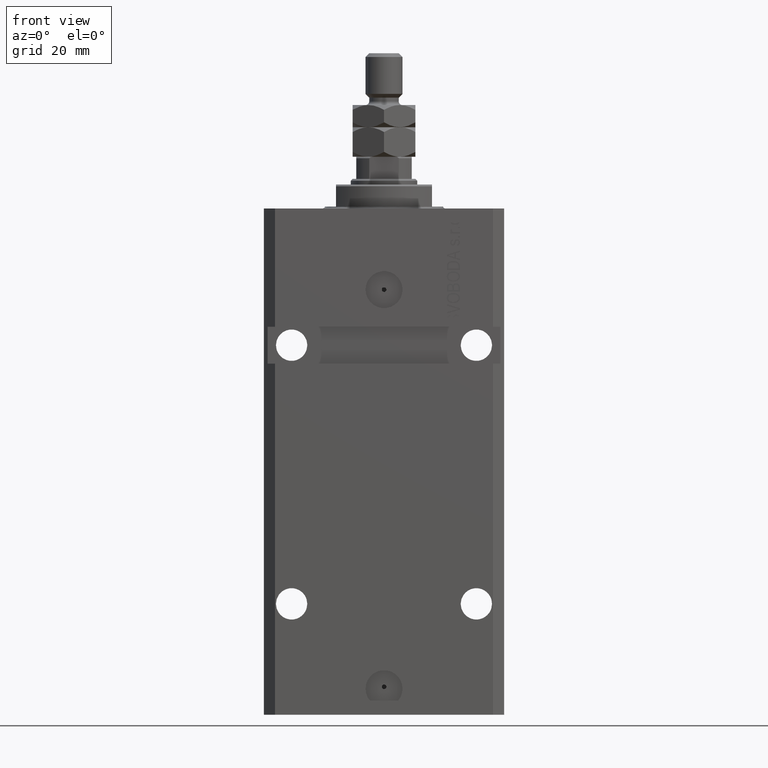
[diagram: clean part render]
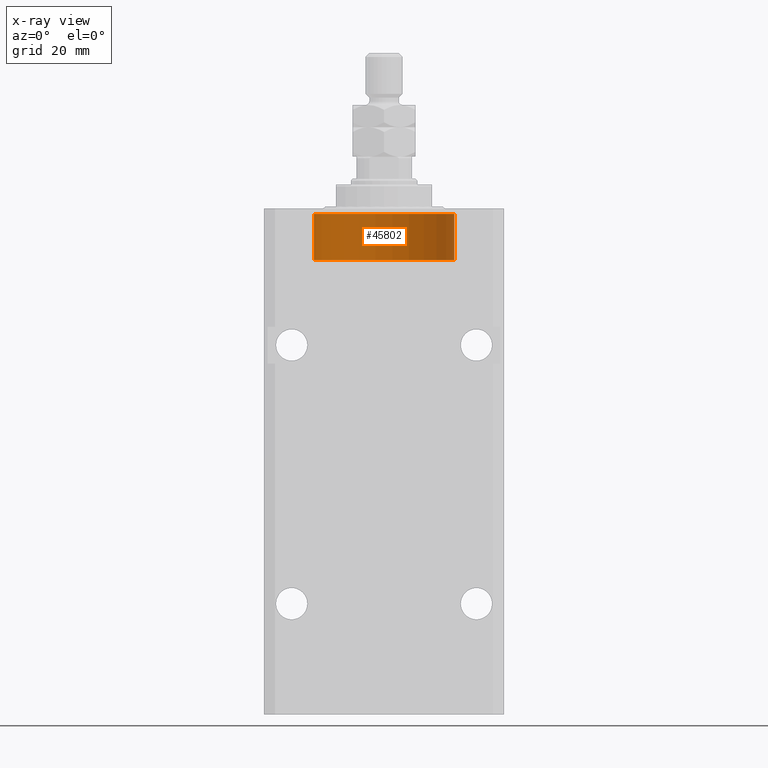
[diagram: x-ray — body ghosted, one internal face saturated and labeled with its STEP entity id]
A machine part, front view, then the same camera in x-ray: the body is ghosted and one INTERNAL B-rep face — a face not visible from any outside direction — is saturated and labeled: STEP entity #45802.
In plain terms, the highlighted cylindrical surface (partial cylindrical patch) has radius 19 mm, axis along (0, -0, 1).
Its self-contained STEP definition (entity closure, byte-faithful):
#993 = EDGE_CURVE ( 'NONE', #32189, #25104, #32823, .T. ) ;
#1394 = CARTESIAN_POINT ( 'NONE',  ( 19.00000000000000000, 2.326828918379970970E-15, 1.500000000000004885 ) ) ;
#3019 = CARTESIAN_POINT ( 'NONE',  ( -19.00000000000000000, 0.000000000000000000, 14.00000000000000000 ) ) ;
#4091 = VERTEX_POINT ( 'NONE', #34472 ) ;
#5358 = CARTESIAN_POINT ( 'NONE',  ( 19.00000000000000000, 2.326828918379970970E-15, 14.00000000000000000 ) ) ;
#6805 = LINE ( 'NONE', #3019, #49701 ) ;
#10811 = EDGE_CURVE ( 'NONE', #25104, #26211, #37685, .T. ) ;
#15362 = AXIS2_PLACEMENT_3D ( 'NONE', #19114, #26420, #19602 ) ;
#16331 = EDGE_CURVE ( 'NONE', #32189, #4091, #20196, .T. ) ;
#19114 = CARTESIAN_POINT ( 'NONE',  ( 0.000000000000000000, 0.000000000000000000, 14.00000000000000000 ) ) ;
#19602 = DIRECTION ( 'NONE',  ( 1.000000000000000000, 0.000000000000000000, 0.000000000000000000 ) ) ;
#20196 = CIRCLE ( 'NONE', #15362, 19.00000000000000000 ) ;
#22556 = CARTESIAN_POINT ( 'NONE',  ( -19.00000000000000000, 0.000000000000000000, 1.500000000000004885 ) ) ;
#23761 = CYLINDRICAL_SURFACE ( 'NONE', #48278, 19.00000000000000000 ) ;
#23960 = DIRECTION ( 'NONE',  ( 1.000000000000000000, 0.000000000000000000, 0.000000000000000000 ) ) ;
#24213 = CARTESIAN_POINT ( 'NONE',  ( 0.000000000000000000, 0.000000000000000000, 1.500000000000004885 ) ) ;
#24679 = CARTESIAN_POINT ( 'NONE',  ( 0.000000000000000000, 0.000000000000000000, 14.00000000000000000 ) ) ;
#25104 = VERTEX_POINT ( 'NONE', #1394 ) ;
#26211 = VERTEX_POINT ( 'NONE', #22556 ) ;
#26420 = DIRECTION ( 'NONE',  ( 0.000000000000000000, 0.000000000000000000, 1.000000000000000000 ) ) ;
#27269 = CARTESIAN_POINT ( 'NONE',  ( 19.00000000000000000, 2.326828918379970970E-15, 14.00000000000000000 ) ) ;
#28727 = ORIENTED_EDGE ( 'NONE', *, *, #39390, .F. ) ;
#28968 = DIRECTION ( 'NONE',  ( -1.000000000000000000, 0.000000000000000000, 0.000000000000000000 ) ) ;
#30966 = ORIENTED_EDGE ( 'NONE', *, *, #16331, .F. ) ;
#32189 = VERTEX_POINT ( 'NONE', #27269 ) ;
#32823 = LINE ( 'NONE', #5358, #36734 ) ;
#34472 = CARTESIAN_POINT ( 'NONE',  ( -19.00000000000000000, 0.000000000000000000, 14.00000000000000000 ) ) ;
#36277 = DIRECTION ( 'NONE',  ( -0.000000000000000000, -0.000000000000000000, 1.000000000000000000 ) ) ;
#36734 = VECTOR ( 'NONE', #36833, 1000.000000000000000 ) ;
#36833 = DIRECTION ( 'NONE',  ( -0.000000000000000000, -0.000000000000000000, -1.000000000000000000 ) ) ;
#37685 = CIRCLE ( 'NONE', #42505, 19.00000000000000000 ) ;
#38018 = ORIENTED_EDGE ( 'NONE', *, *, #10811, .T. ) ;
#39390 = EDGE_CURVE ( 'NONE', #4091, #26211, #6805, .T. ) ;
#40525 = DIRECTION ( 'NONE',  ( -0.000000000000000000, -0.000000000000000000, -1.000000000000000000 ) ) ;
#42505 = AXIS2_PLACEMENT_3D ( 'NONE', #24213, #36277, #23960 ) ;
#45069 = DIRECTION ( 'NONE',  ( -0.000000000000000000, -0.000000000000000000, -1.000000000000000000 ) ) ;
#45802 = ADVANCED_FACE ( 'NONE', ( #48333 ), #23761, .T. ) ;
#47045 = ORIENTED_EDGE ( 'NONE', *, *, #993, .T. ) ;
#48278 = AXIS2_PLACEMENT_3D ( 'NONE', #24679, #40525, #28968 ) ;
#48333 = FACE_OUTER_BOUND ( 'NONE', #49166, .T. ) ;
#49166 = EDGE_LOOP ( 'NONE', ( #30966, #47045, #38018, #28727 ) ) ;
#49701 = VECTOR ( 'NONE', #45069, 1000.000000000000000 ) ;